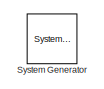
[diagram: root canvas - part 1/3, top center region]
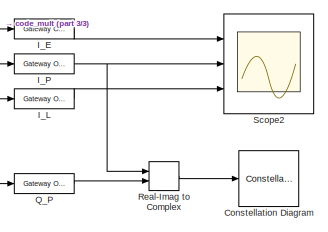
[diagram: root canvas - part 2/3, middle right region]
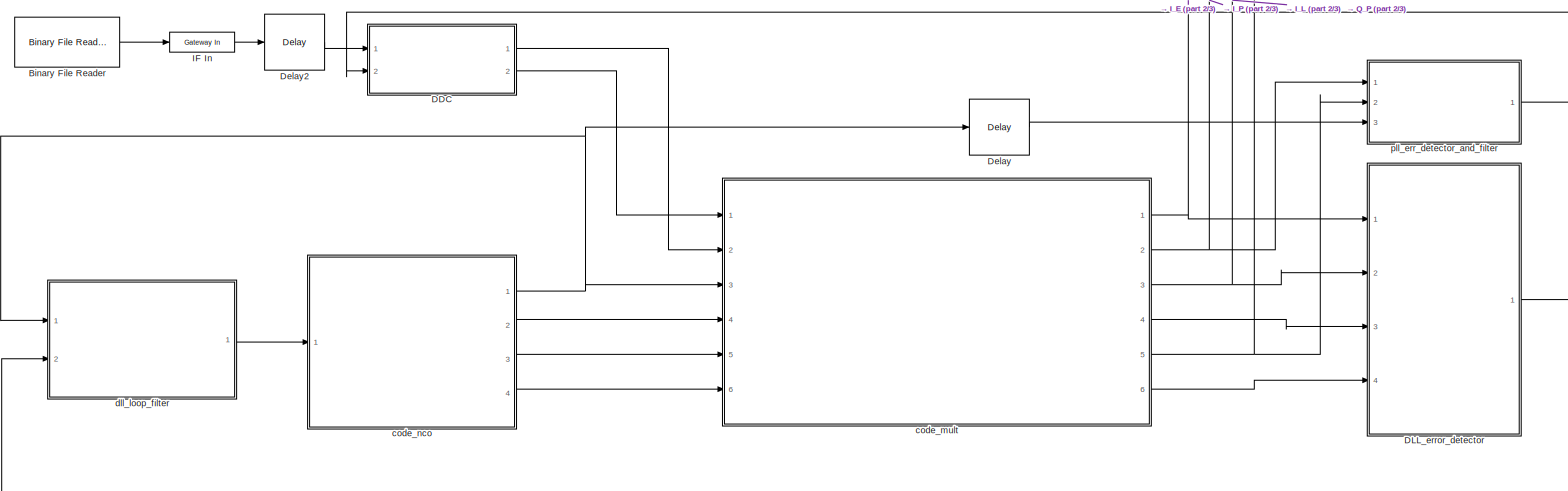
[diagram: root canvas - part 3/3, full width, bottom band]
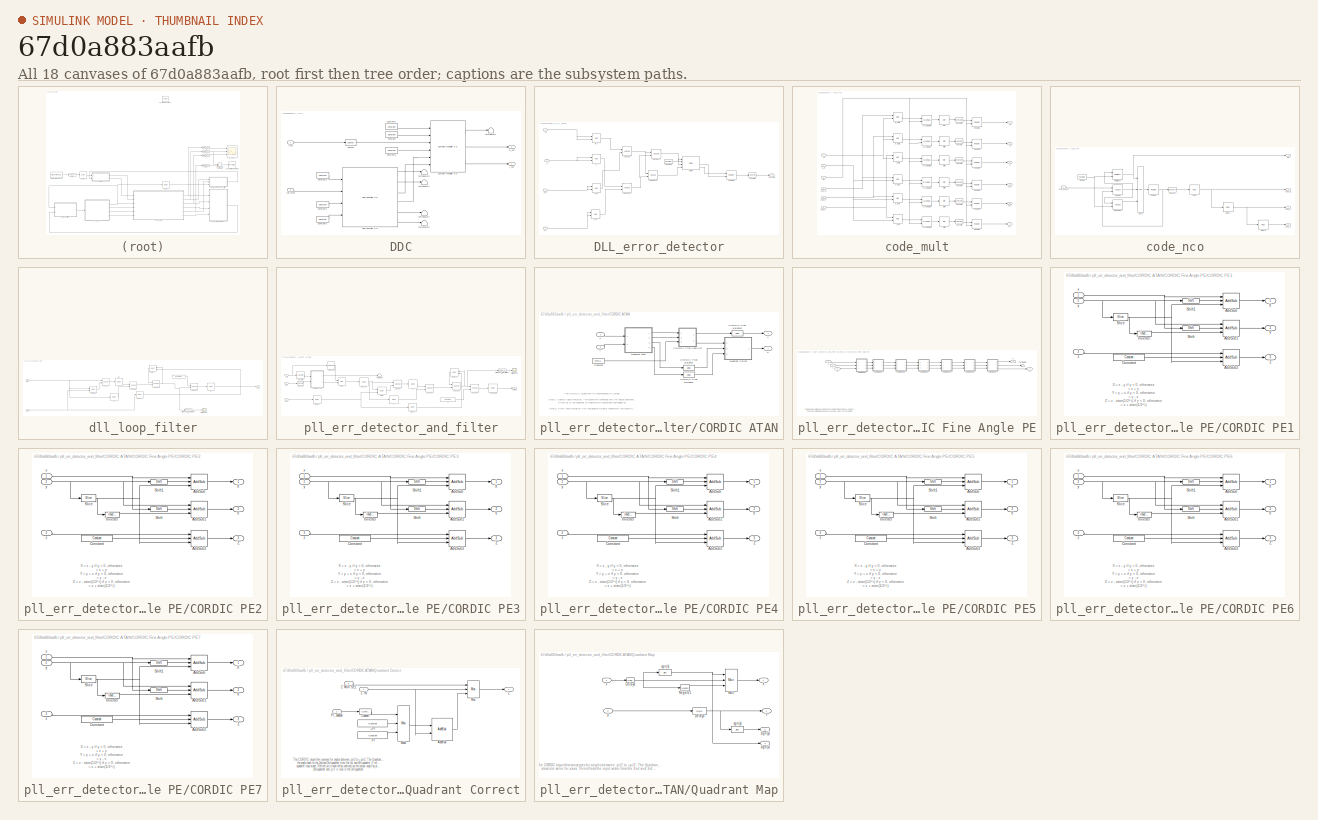
[diagram: thumbnail index - all 18 canvases of the model, root first then tree order]
MODEL slx_67d0a883aafb
KIND model
CONFIG AbsTol = auto
CONFIG EnableMultiTasking = off
CONFIG FixedStep = auto
CONFIG MaxStep = auto
CONFIG MinStep = auto
CONFIG RelTol = 1e-3
CONFIG SampleTimeConstraint = Unconstrained
CONFIG Solver = VariableStepAuto
CONFIG SolverName = VariableStepAuto
CONFIG StartTime = 0.0
CONFIG StopTime = 500*16368/16367600
BLOCK [Reference]  I_P  REF=xbsIndex_r4/Gateway Out
  Ports = [1, 1]
  SourceBlock = xbsIndex_r4/Gateway Out
  SourceType = Xilinx Gateway Out Block
BLOCK [Reference]  System Generator  REF=xbsIndex_r4/ System Generator
  AttributesFormatString = System\nGenerator
  Ports = []
  SourceBlock = xbsIndex_r4/ System Generator
  SourceType = Xilinx System Generator Block
  Tag = genX
  UserDataPersistent = on
BLOCK [Reference] Binary File Reader  REF=dspsrcs4/Binary File Reader
  Ports = [0, 1]
  SourceBlock = dspsrcs4/Binary File Reader
  SourceProductBaseCode = DS
  SourceProductName = DSP System Toolbox
  SourceType = dsp.simulink.BinaryFileReader
BLOCK [ConstellationDiagram] Constellation Diagram
  Ports = [1]
  ScopeSpecificationString = comm.scopes.ConstellationDiagramBlockCfg('CurrentConfiguration', extmgr.ConfigurationSet(extmgr.Configuration('Core','General UI',true),extmgr.Configuration('Core','Source UI',true),extmgr.Configuration('Sources','WiredSimulink',true),extmgr.Configuration('Sources','SimulinkEvent',false),extmgr.Configuration('Sources','Simulink',false),extmgr.Configuration('Sources','SPTool',false),extmgr.Configur...<+2542ch>
BLOCK [SubSystem] DDC
  Ports = [2, 2]
  RequestExecContextInheritance = off
BLOCK [Reference] DDC/Complex Multiplier 6.0   REF=xbsIndex_r4/Complex Multiplier 6.0 
  Ports = [6, 3]
  SourceBlock = xbsIndex_r4/Complex Multiplier 6.0
  SourceType = Xilinx Complex Multiplier 6.0  Block
BLOCK [Reference] DDC/Constant  REF=xbsIndex_r4/Constant
  Ports = [0, 1]
  SourceBlock = xbsIndex_r4/Constant
  SourceType = Xilinx Constant Block Block
BLOCK [Reference] DDC/Constant1  REF=xbsIndex_r4/Constant
  Ports = [0, 1]
  SourceBlock = xbsIndex_r4/Constant
  SourceType = Xilinx Constant Block Block
BLOCK [Reference] DDC/Constant2  REF=xbsIndex_r4/Constant
  Ports = [0, 1]
  SourceBlock = xbsIndex_r4/Constant
  SourceType = Xilinx Constant Block Block
BLOCK [Reference] DDC/Constant3  REF=xbsIndex_r4/Constant
  Ports = [0, 1]
  SourceBlock = xbsIndex_r4/Constant
  SourceType = Xilinx Constant Block Block
BLOCK [Reference] DDC/Constant4  REF=xbsIndex_r4/Constant
  Ports = [0, 1]
  SourceBlock = xbsIndex_r4/Constant
  SourceType = Xilinx Constant Block Block
BLOCK [Reference] DDC/Constant6  REF=xbsIndex_r4/Constant
  Ports = [0, 1]
  SourceBlock = xbsIndex_r4/Constant
  SourceType = Xilinx Constant Block Block
BLOCK [Reference] DDC/Convert  REF=xbsIndex_r4/Convert
  Ports = [1, 1]
  SourceBlock = xbsIndex_r4/Convert
  SourceType = Xilinx Type Converter Block
BLOCK [Reference] DDC/DDS Compiler 6.0   REF=xbsIndex_r4/DDS Compiler 6.0 
  Ports = [4, 6]
  SourceBlock = xbsIndex_r4/DDS Compiler 6.0
  SourceType = Xilinx DDS Compiler 6.0 Block
BLOCK [Inport] DDC/IF_in
  IconDisplay = Port number
BLOCK [Outport] DDC/I_out
  IconDisplay = Port number
  Port = 2
BLOCK [Outport] DDC/Q_out
  IconDisplay = Port number
BLOCK [Terminator] DDC/Terminator1
BLOCK [Terminator] DDC/Terminator2
BLOCK [Terminator] DDC/Terminator3
BLOCK [Terminator] DDC/Terminator4
BLOCK [Terminator] DDC/Terminator5
BLOCK [Inport] DDC/carrFreq
  IconDisplay = Port number
  Port = 2
BLOCK [SubSystem] DLL_error_detector
  Ports = [4, 1]
  RequestExecContextInheritance = off
BLOCK [Reference] DLL_error_detector/AddSub10  REF=xbsIndex_r4/AddSub
  Ports = [2, 1]
  SourceBlock = xbsIndex_r4/AddSub
  SourceType = Xilinx Adder/Subtracter Block
BLOCK [Reference] DLL_error_detector/AddSub11  REF=xbsIndex_r4/AddSub
  Ports = [2, 1]
  SourceBlock = xbsIndex_r4/AddSub
  SourceType = Xilinx Adder/Subtracter Block
BLOCK [Reference] DLL_error_detector/AddSub12  REF=xbsIndex_r4/AddSub
  Ports = [2, 1]
  SourceBlock = xbsIndex_r4/AddSub
  SourceType = Xilinx Adder/Subtracter Block
BLOCK [Reference] DLL_error_detector/AddSub9  REF=xbsIndex_r4/AddSub
  Ports = [2, 1]
  SourceBlock = xbsIndex_r4/AddSub
  SourceType = Xilinx Adder/Subtracter Block
BLOCK [Reference] DLL_error_detector/Constant1  REF=xbsIndex_r4/Constant
  Ports = [0, 1]
  SourceBlock = xbsIndex_r4/Constant
  SourceType = Xilinx Constant Block Block
BLOCK [Reference] DLL_error_detector/Convert9  REF=xbsIndex_r4/Convert
  Ports = [1, 1]
  SourceBlock = xbsIndex_r4/Convert
  SourceType = Xilinx Type Converter Block
BLOCK [Reference] DLL_error_detector/Divide  REF=xbsIndex_r4/Divide
  Ports = [4, 4]
  SourceBlock = xbsIndex_r4/Divide
  SourceType = Xilinx Divider Block
BLOCK [Reference] DLL_error_detector/E_I  REF=xbsIndex_r4/Mult
  Ports = [2, 1]
  SourceBlock = xbsIndex_r4/Mult
  SourceType = Xilinx Multiplier Block
BLOCK [Reference] DLL_error_detector/E_Q  REF=xbsIndex_r4/Mult
  Ports = [2, 1]
  SourceBlock = xbsIndex_r4/Mult
  SourceType = Xilinx Multiplier Block
BLOCK [Inport] DLL_error_detector/I_E
  IconDisplay = Port number
BLOCK [Inport] DLL_error_detector/I_L
  IconDisplay = Port number
  Port = 2
BLOCK [Reference] DLL_error_detector/L_I  REF=xbsIndex_r4/Mult
  Ports = [2, 1]
  SourceBlock = xbsIndex_r4/Mult
  SourceType = Xilinx Multiplier Block
BLOCK [Reference] DLL_error_detector/L_Q  REF=xbsIndex_r4/Mult
  Ports = [2, 1]
  SourceBlock = xbsIndex_r4/Mult
  SourceType = Xilinx Multiplier Block
BLOCK [Inport] DLL_error_detector/Q_E
  IconDisplay = Port number
  Port = 3
BLOCK [Inport] DLL_error_detector/Q_L
  IconDisplay = Port number
  Port = 4
BLOCK [Reference] DLL_error_detector/Register1  REF=xbsIndex_r4/Register
  Ports = [2, 1]
  SourceBlock = xbsIndex_r4/Register
  SourceType = Xilinx Register Block
BLOCK [Outport] DLL_error_detector/code_freq
  IconDisplay = Port number
BLOCK [Reference] Delay  REF=xbsIndex_r4/Delay
  Ports = [1, 1]
  SourceBlock = xbsIndex_r4/Delay
  SourceType = Xilinx Delay Block
BLOCK [Reference] Delay2  REF=xbsIndex_r4/Delay
  Ports = [1, 1]
  SourceBlock = xbsIndex_r4/Delay
  SourceType = Xilinx Delay Block
BLOCK [Reference] IF In  REF=xbsIndex_r4/Gateway In
  Ports = [1, 1]
  SourceBlock = xbsIndex_r4/Gateway In
  SourceType = Xilinx Gateway In Block
BLOCK [Reference] I_E  REF=xbsIndex_r4/Gateway Out
  Ports = [1, 1]
  SourceBlock = xbsIndex_r4/Gateway Out
  SourceType = Xilinx Gateway Out Block
BLOCK [Reference] I_L  REF=xbsIndex_r4/Gateway Out
  Ports = [1, 1]
  SourceBlock = xbsIndex_r4/Gateway Out
  SourceType = Xilinx Gateway Out Block
BLOCK [Reference] Q_P  REF=xbsIndex_r4/Gateway Out
  Ports = [1, 1]
  SourceBlock = xbsIndex_r4/Gateway Out
  SourceType = Xilinx Gateway Out Block
BLOCK [RealImagToComplex] Real-Imag to Complex
  Ports = [2, 1]
BLOCK [Scope] Scope2
  Floating = off
  NumInputPorts = 3
  Ports = [3]
  ScopeSpecificationString = Simulink.scopes.TimeScopeBlockCfg('CurrentConfiguration', extmgr.ConfigurationSet(extmgr.Configuration('Core','General UI',true),extmgr.Configuration('Core','Source UI',true),extmgr.Configuration('Sources','WiredSimulink',true,'DataLoggingVariableName','ScopeData2'),extmgr.Configuration('Visuals','Time Domain',true,'SerializedDisplays',{struct('MinYLimReal','-5303.125','MaxYLimReal','1008.125','YL...<+1437ch>
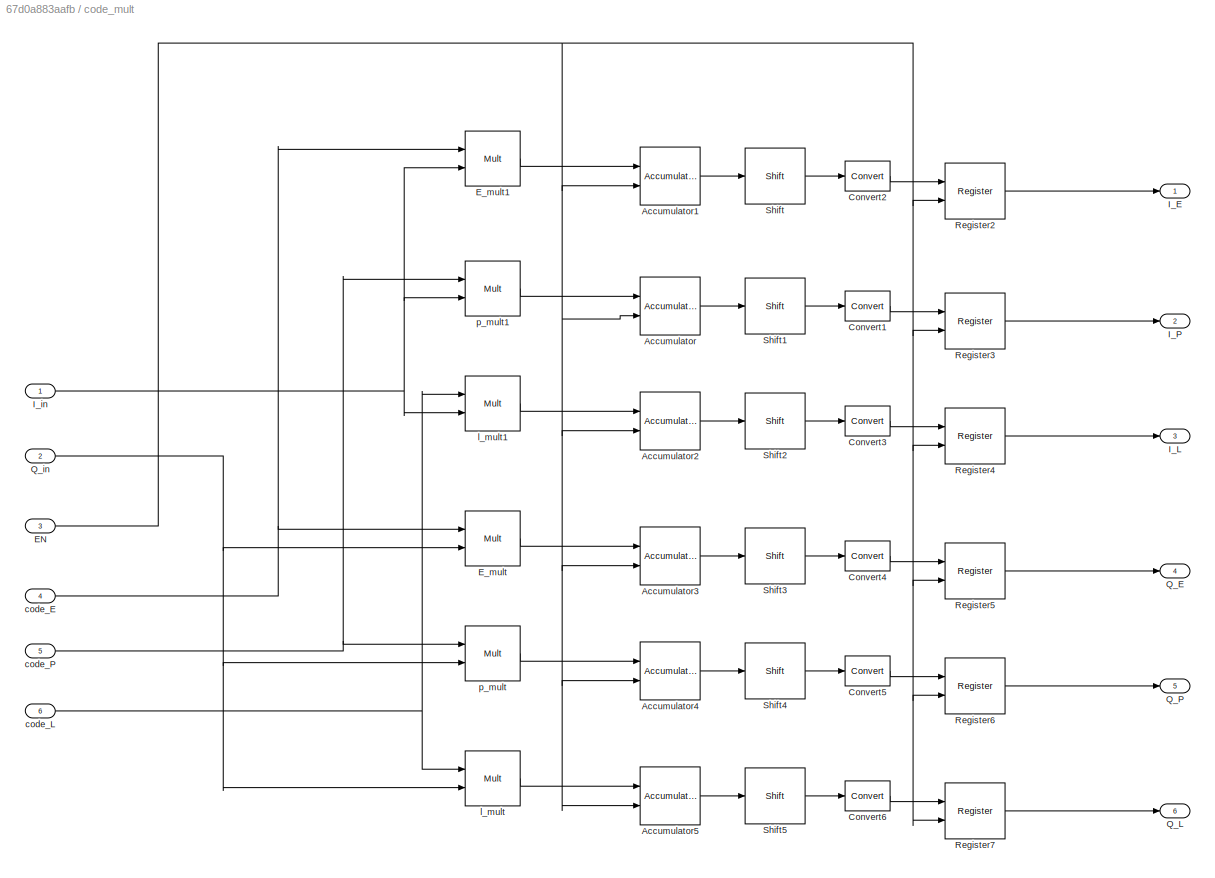
BLOCK [SubSystem] code_mult
  Ports = [6, 6]
  RequestExecContextInheritance = off
BLOCK [Reference] code_mult/Accumulator  REF=xbsIndex_r4/Accumulator
  Ports = [2, 1]
  SourceBlock = xbsIndex_r4/Accumulator
  SourceType = Xilinx Accumulator Block
BLOCK [Reference] code_mult/Accumulator1  REF=xbsIndex_r4/Accumulator
  Ports = [2, 1]
  SourceBlock = xbsIndex_r4/Accumulator
  SourceType = Xilinx Accumulator Block
BLOCK [Reference] code_mult/Accumulator2  REF=xbsIndex_r4/Accumulator
  Ports = [2, 1]
  SourceBlock = xbsIndex_r4/Accumulator
  SourceType = Xilinx Accumulator Block
BLOCK [Reference] code_mult/Accumulator3  REF=xbsIndex_r4/Accumulator
  Ports = [2, 1]
  SourceBlock = xbsIndex_r4/Accumulator
  SourceType = Xilinx Accumulator Block
BLOCK [Reference] code_mult/Accumulator4  REF=xbsIndex_r4/Accumulator
  Ports = [2, 1]
  SourceBlock = xbsIndex_r4/Accumulator
  SourceType = Xilinx Accumulator Block
BLOCK [Reference] code_mult/Accumulator5  REF=xbsIndex_r4/Accumulator
  Ports = [2, 1]
  SourceBlock = xbsIndex_r4/Accumulator
  SourceType = Xilinx Accumulator Block
BLOCK [Reference] code_mult/Convert1  REF=xbsIndex_r4/Convert
  Ports = [1, 1]
  SourceBlock = xbsIndex_r4/Convert
  SourceType = Xilinx Type Converter Block
BLOCK [Reference] code_mult/Convert2  REF=xbsIndex_r4/Convert
  Ports = [1, 1]
  SourceBlock = xbsIndex_r4/Convert
  SourceType = Xilinx Type Converter Block
BLOCK [Reference] code_mult/Convert3  REF=xbsIndex_r4/Convert
  Ports = [1, 1]
  SourceBlock = xbsIndex_r4/Convert
  SourceType = Xilinx Type Converter Block
BLOCK [Reference] code_mult/Convert4  REF=xbsIndex_r4/Convert
  Ports = [1, 1]
  SourceBlock = xbsIndex_r4/Convert
  SourceType = Xilinx Type Converter Block
BLOCK [Reference] code_mult/Convert5  REF=xbsIndex_r4/Convert
  Ports = [1, 1]
  SourceBlock = xbsIndex_r4/Convert
  SourceType = Xilinx Type Converter Block
BLOCK [Reference] code_mult/Convert6  REF=xbsIndex_r4/Convert
  Ports = [1, 1]
  SourceBlock = xbsIndex_r4/Convert
  SourceType = Xilinx Type Converter Block
BLOCK [Inport] code_mult/EN
  IconDisplay = Port number
  Port = 3
BLOCK [Reference] code_mult/E_mult  REF=xbsIndex_r4/Mult
  Ports = [2, 1]
  SourceBlock = xbsIndex_r4/Mult
  SourceType = Xilinx Multiplier Block
BLOCK [Reference] code_mult/E_mult1  REF=xbsIndex_r4/Mult
  Ports = [2, 1]
  SourceBlock = xbsIndex_r4/Mult
  SourceType = Xilinx Multiplier Block
BLOCK [Outport] code_mult/I_E
  IconDisplay = Port number
BLOCK [Outport] code_mult/I_L
  IconDisplay = Port number
  Port = 3
BLOCK [Outport] code_mult/I_P
  IconDisplay = Port number
  Port = 2
BLOCK [Inport] code_mult/I_in
  IconDisplay = Port number
BLOCK [Outport] code_mult/Q_E
  IconDisplay = Port number
  Port = 4
BLOCK [Outport] code_mult/Q_L
  IconDisplay = Port number
  Port = 6
BLOCK [Outport] code_mult/Q_P
  IconDisplay = Port number
  Port = 5
BLOCK [Inport] code_mult/Q_in
  IconDisplay = Port number
  Port = 2
BLOCK [Reference] code_mult/Register2  REF=xbsIndex_r4/Register
  Ports = [2, 1]
  SourceBlock = xbsIndex_r4/Register
  SourceType = Xilinx Register Block
BLOCK [Reference] code_mult/Register3  REF=xbsIndex_r4/Register
  Ports = [2, 1]
  SourceBlock = xbsIndex_r4/Register
  SourceType = Xilinx Register Block
BLOCK [Reference] code_mult/Register4  REF=xbsIndex_r4/Register
  Ports = [2, 1]
  SourceBlock = xbsIndex_r4/Register
  SourceType = Xilinx Register Block
BLOCK [Reference] code_mult/Register5  REF=xbsIndex_r4/Register
  Ports = [2, 1]
  SourceBlock = xbsIndex_r4/Register
  SourceType = Xilinx Register Block
BLOCK [Reference] code_mult/Register6  REF=xbsIndex_r4/Register
  Ports = [2, 1]
  SourceBlock = xbsIndex_r4/Register
  SourceType = Xilinx Register Block
BLOCK [Reference] code_mult/Register7  REF=xbsIndex_r4/Register
  Ports = [2, 1]
  SourceBlock = xbsIndex_r4/Register
  SourceType = Xilinx Register Block
BLOCK [Reference] code_mult/Shift  REF=xbsIndex_r4/Shift
  Commented = through
  Ports = [1, 1]
  SourceBlock = xbsIndex_r4/Shift
  SourceType = Xilinx Binary Shift Operator Block
BLOCK [Reference] code_mult/Shift1  REF=xbsIndex_r4/Shift
  Commented = through
  Ports = [1, 1]
  SourceBlock = xbsIndex_r4/Shift
  SourceType = Xilinx Binary Shift Operator Block
BLOCK [Reference] code_mult/Shift2  REF=xbsIndex_r4/Shift
  Commented = through
  Ports = [1, 1]
  SourceBlock = xbsIndex_r4/Shift
  SourceType = Xilinx Binary Shift Operator Block
BLOCK [Reference] code_mult/Shift3  REF=xbsIndex_r4/Shift
  Commented = through
  Ports = [1, 1]
  SourceBlock = xbsIndex_r4/Shift
  SourceType = Xilinx Binary Shift Operator Block
BLOCK [Reference] code_mult/Shift4  REF=xbsIndex_r4/Shift
  Commented = through
  Ports = [1, 1]
  SourceBlock = xbsIndex_r4/Shift
  SourceType = Xilinx Binary Shift Operator Block
BLOCK [Reference] code_mult/Shift5  REF=xbsIndex_r4/Shift
  Commented = through
  Ports = [1, 1]
  SourceBlock = xbsIndex_r4/Shift
  SourceType = Xilinx Binary Shift Operator Block
BLOCK [Inport] code_mult/code_E
  IconDisplay = Port number
  Port = 4
BLOCK [Inport] code_mult/code_L
  IconDisplay = Port number
  Port = 6
BLOCK [Inport] code_mult/code_P
  IconDisplay = Port number
  Port = 5
BLOCK [Reference] code_mult/l_mult  REF=xbsIndex_r4/Mult
  Ports = [2, 1]
  SourceBlock = xbsIndex_r4/Mult
  SourceType = Xilinx Multiplier Block
BLOCK [Reference] code_mult/l_mult1  REF=xbsIndex_r4/Mult
  Ports = [2, 1]
  SourceBlock = xbsIndex_r4/Mult
  SourceType = Xilinx Multiplier Block
BLOCK [Reference] code_mult/p_mult  REF=xbsIndex_r4/Mult
  Ports = [2, 1]
  SourceBlock = xbsIndex_r4/Mult
  SourceType = Xilinx Multiplier Block
BLOCK [Reference] code_mult/p_mult1  REF=xbsIndex_r4/Mult
  Ports = [2, 1]
  SourceBlock = xbsIndex_r4/Mult
  SourceType = Xilinx Multiplier Block
BLOCK [SubSystem] code_nco
  Ports = [1, 4]
  RequestExecContextInheritance = off
BLOCK [Reference] code_nco/AddSub  REF=xbsIndex_r4/AddSub
  Ports = [2, 1]
  SourceBlock = xbsIndex_r4/AddSub
  SourceType = Xilinx Adder/Subtracter Block
BLOCK [Reference] code_nco/Convert  REF=xbsIndex_r4/Convert
  Ports = [1, 1]
  SourceBlock = xbsIndex_r4/Convert
  SourceType = Xilinx Type Converter Block
BLOCK [Reference] code_nco/Delay4  REF=xbsIndex_r4/Delay
  Ports = [1, 1]
  SourceBlock = xbsIndex_r4/Delay
  SourceType = Xilinx Delay Block
BLOCK [Reference] code_nco/Delay6  REF=xbsIndex_r4/Delay
  Ports = [1, 1]
  SourceBlock = xbsIndex_r4/Delay
  SourceType = Xilinx Delay Block
BLOCK [Outport] code_nco/EN
  IconDisplay = Port number
BLOCK [Reference] code_nco/Modulo  REF=xbsIndex_r4/Constant
  Ports = [0, 1]
  SourceBlock = xbsIndex_r4/Constant
  SourceType = Xilinx Constant Block Block
BLOCK [Reference] code_nco/ModuloGen  REF=xbsIndex_r4/AddSub
  Ports = [2, 1]
  SourceBlock = xbsIndex_r4/AddSub
  SourceType = Xilinx Adder/Subtracter Block
BLOCK [Reference] code_nco/Mux1  REF=xbsIndex_r4/Mux
  Ports = [3, 1]
  SourceBlock = xbsIndex_r4/Mux
  SourceType = Xilinx Bus Multiplexer Block
BLOCK [Reference] code_nco/ROM  REF=xbsIndex_r4/ROM
  Ports = [1, 1]
  SourceBlock = xbsIndex_r4/ROM
  SourceType = Xilinx Single Port Read-Only Memory Block
BLOCK [Reference] code_nco/Register  REF=xbsIndex_r4/Register
  Ports = [1, 1]
  SourceBlock = xbsIndex_r4/Register
  SourceType = Xilinx Register Block
BLOCK [Reference] code_nco/Relational  REF=xbsIndex_r4/Relational
  Ports = [2, 1]
  SourceBlock = xbsIndex_r4/Relational
  SourceType = Xilinx Arithmetic Relational Operator Block
BLOCK [Outport] code_nco/code_E
  IconDisplay = Port number
  Port = 2
BLOCK [Outport] code_nco/code_L
  IconDisplay = Port number
  Port = 4
BLOCK [Outport] code_nco/code_P
  IconDisplay = Port number
  Port = 3
BLOCK [Inport] code_nco/code_freq_in
  IconDisplay = Port number
BLOCK [SubSystem] dll_loop_filter
  Ports = [2, 1]
  RequestExecContextInheritance = off
BLOCK [Reference] dll_loop_filter/AddSub2  REF=xbsIndex_r4/AddSub
  Ports = [2, 1]
  SourceBlock = xbsIndex_r4/AddSub
  SourceType = Xilinx Adder/Subtracter Block
BLOCK [Reference] dll_loop_filter/AddSub5  REF=xbsIndex_r4/AddSub
  Ports = [2, 1]
  SourceBlock = xbsIndex_r4/AddSub
  SourceType = Xilinx Adder/Subtracter Block
BLOCK [Reference] dll_loop_filter/AddSub6  REF=xbsIndex_r4/AddSub
  Ports = [2, 1]
  SourceBlock = xbsIndex_r4/AddSub
  SourceType = Xilinx Adder/Subtracter Block
BLOCK [Reference] dll_loop_filter/AddSub7  REF=xbsIndex_r4/AddSub
  Ports = [2, 1]
  SourceBlock = xbsIndex_r4/AddSub
  SourceType = Xilinx Adder/Subtracter Block
BLOCK [Reference] dll_loop_filter/D1  REF=xbsIndex_r4/CMult
  Ports = [1, 1]
  SourceBlock = xbsIndex_r4/CMult
  SourceType = Xilinx Constant Multiplier Block
BLOCK [Reference] dll_loop_filter/D2  REF=xbsIndex_r4/CMult
  Ports = [1, 1]
  SourceBlock = xbsIndex_r4/CMult
  SourceType = Xilinx Constant Multiplier Block
BLOCK [Reference] dll_loop_filter/Delay5  REF=xbsIndex_r4/Delay
  Ports = [2, 1]
  SourceBlock = xbsIndex_r4/Delay
  SourceType = Xilinx Delay Block
BLOCK [Reference] dll_loop_filter/Delay7  REF=xbsIndex_r4/Delay
  Ports = [2, 1]
  SourceBlock = xbsIndex_r4/Delay
  SourceType = Xilinx Delay Block
BLOCK [Reference] dll_loop_filter/Delay8  REF=xbsIndex_r4/Delay
  Ports = [1, 1]
  SourceBlock = xbsIndex_r4/Delay
  SourceType = Xilinx Delay Block
BLOCK [Reference] dll_loop_filter/F1  REF=xbsIndex_r4/Constant
  Ports = [0, 1]
  SourceBlock = xbsIndex_r4/Constant
  SourceType = Xilinx Constant Block Block
BLOCK [Scope] dll_loop_filter/FilteredDLL
  Floating = off
  NumInputPorts = 1
  Ports = [1]
  ScopeSpecificationString = Simulink.scopes.TimeScopeBlockCfg('CurrentConfiguration', extmgr.ConfigurationSet(extmgr.Configuration('Core','General UI',true),extmgr.Configuration('Core','Source UI',true),extmgr.Configuration('Sources','WiredSimulink',true),extmgr.Configuration('Visuals','Time Domain',true,'SerializedDisplays',{struct('MinYLimReal','-6.82418','MaxYLimReal','2.14703','YLabelReal','','MinYLimMag','0.00000','MaxY...<+1399ch>
BLOCK [Reference] dll_loop_filter/FilteredDLLDiscriminator  REF=xbsIndex_r4/Gateway Out
  Ports = [1, 1]
  SourceBlock = xbsIndex_r4/Gateway Out
  SourceType = Xilinx Gateway Out Block
BLOCK [Reference] dll_loop_filter/I2  REF=xbsIndex_r4/CMult
  Ports = [1, 1]
  SourceBlock = xbsIndex_r4/CMult
  SourceType = Xilinx Constant Multiplier Block
BLOCK [Outport] dll_loop_filter/Out1
  IconDisplay = Port number
BLOCK [Inport] dll_loop_filter/en
  IconDisplay = Port number
BLOCK [Inport] dll_loop_filter/error
  IconDisplay = Port number
  Port = 2
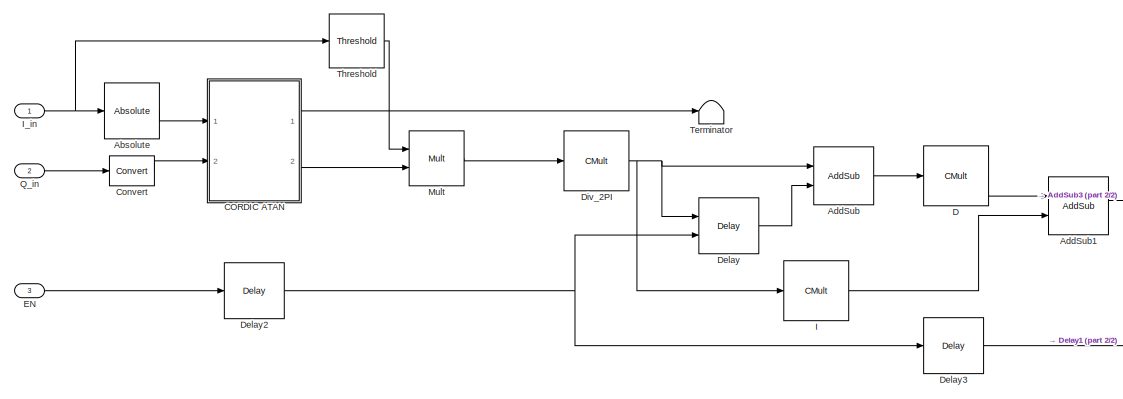
[diagram: pll_err_detector_and_filter - part 1/2, left side, full height]
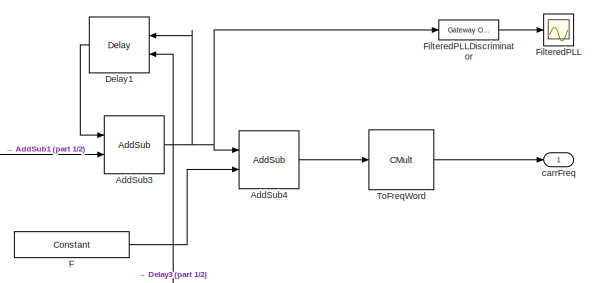
[diagram: pll_err_detector_and_filter - part 2/2, middle right region]
BLOCK [SubSystem] pll_err_detector_and_filter
  Ports = [3, 1]
  RequestExecContextInheritance = off
BLOCK [Reference] pll_err_detector_and_filter/ FilteredPLLDiscriminator  REF=xbsIndex_r4/Gateway Out
  Ports = [1, 1]
  SourceBlock = xbsIndex_r4/Gateway Out
  SourceType = Xilinx Gateway Out Block
BLOCK [Reference] pll_err_detector_and_filter/Absolute  REF=xbsIndex_r4/Absolute
  Ports = [1, 1]
  SourceBlock = xbsIndex_r4/Absolute
  SourceType = Xilinx Absolute Block Block
BLOCK [Reference] pll_err_detector_and_filter/AddSub  REF=xbsIndex_r4/AddSub
  Ports = [2, 1]
  SourceBlock = xbsIndex_r4/AddSub
  SourceType = Xilinx Adder/Subtracter Block
BLOCK [Reference] pll_err_detector_and_filter/AddSub1  REF=xbsIndex_r4/AddSub
  Ports = [2, 1]
  SourceBlock = xbsIndex_r4/AddSub
  SourceType = Xilinx Adder/Subtracter Block
BLOCK [Reference] pll_err_detector_and_filter/AddSub3  REF=xbsIndex_r4/AddSub
  Ports = [2, 1]
  SourceBlock = xbsIndex_r4/AddSub
  SourceType = Xilinx Adder/Subtracter Block
BLOCK [Reference] pll_err_detector_and_filter/AddSub4  REF=xbsIndex_r4/AddSub
  Ports = [2, 1]
  SourceBlock = xbsIndex_r4/AddSub
  SourceType = Xilinx Adder/Subtracter Block
BLOCK [SubSystem] pll_err_detector_and_filter/CORDIC ATAN
  CopyFcn = set_param(gcb, 'MaskSelfModifiable', 'on', 'LinkStatus', 'none');
  Ports = [2, 2]
  RequestExecContextInheritance = off
BLOCK [SubSystem] pll_err_detector_and_filter/CORDIC ATAN/CORDIC Fine Angle PE
  Ports = [3, 2]
  RequestExecContextInheritance = off
BLOCK [SubSystem] pll_err_detector_and_filter/CORDIC ATAN/CORDIC Fine Angle PE/CORDIC PE1
  Ports = [3, 3]
  RequestExecContextInheritance = off
BLOCK [Reference] pll_err_detector_and_filter/CORDIC ATAN/CORDIC Fine Angle PE/CORDIC PE1/AddSub  REF=xbsIndex_r4/AddSub
  Ports = [3, 1]
  SourceBlock = xbsIndex_r4/AddSub
  SourceType = Xilinx Adder/Subtracter Block
BLOCK [Reference] pll_err_detector_and_filter/CORDIC ATAN/CORDIC Fine Angle PE/CORDIC PE1/AddSub1  REF=xbsIndex_r4/AddSub
  Ports = [3, 1]
  SourceBlock = xbsIndex_r4/AddSub
  SourceType = Xilinx Adder/Subtracter Block
BLOCK [Reference] pll_err_detector_and_filter/CORDIC ATAN/CORDIC Fine Angle PE/CORDIC PE1/AddSub2  REF=xbsIndex_r4/AddSub
  Ports = [3, 1]
  SourceBlock = xbsIndex_r4/AddSub
  SourceType = Xilinx Adder/Subtracter Block
BLOCK [Reference] pll_err_detector_and_filter/CORDIC ATAN/CORDIC Fine Angle PE/CORDIC PE1/Constant  REF=xbsIndex_r4/Constant
  Ports = [0, 1]
  SourceBlock = xbsIndex_r4/Constant
  SourceType = Xilinx Constant Block Block
BLOCK [Reference] pll_err_detector_and_filter/CORDIC ATAN/CORDIC Fine Angle PE/CORDIC PE1/Inverter  REF=xbsIndex_r4/Inverter
  Ports = [1, 1]
  SourceBlock = xbsIndex_r4/Inverter
  SourceType = Xilinx Inverter Block
BLOCK [Reference] pll_err_detector_and_filter/CORDIC ATAN/CORDIC Fine Angle PE/CORDIC PE1/Shift  REF=xbsIndex_r4/Shift
  Ports = [1, 1]
  SourceBlock = xbsIndex_r4/Shift
  SourceType = Xilinx Binary Shift Operator Block
BLOCK [Reference] pll_err_detector_and_filter/CORDIC ATAN/CORDIC Fine Angle PE/CORDIC PE1/Shift1  REF=xbsIndex_r4/Shift
  Ports = [1, 1]
  SourceBlock = xbsIndex_r4/Shift
  SourceType = Xilinx Binary Shift Operator Block
BLOCK [Reference] pll_err_detector_and_filter/CORDIC ATAN/CORDIC Fine Angle PE/CORDIC PE1/Slice  REF=xbsIndex_r4/Slice
  Ports = [1, 1]
  SourceBlock = xbsIndex_r4/Slice
  SourceType = Xilinx Bit Slice Extractor Block
BLOCK [Outport] pll_err_detector_and_filter/CORDIC ATAN/CORDIC Fine Angle PE/CORDIC PE1/X
  IconDisplay = Port number
BLOCK [Outport] pll_err_detector_and_filter/CORDIC ATAN/CORDIC Fine Angle PE/CORDIC PE1/Y
  IconDisplay = Port number
  Port = 2
BLOCK [Outport] pll_err_detector_and_filter/CORDIC ATAN/CORDIC Fine Angle PE/CORDIC PE1/Z
  IconDisplay = Port number
  Port = 3
BLOCK [Inport] pll_err_detector_and_filter/CORDIC ATAN/CORDIC Fine Angle PE/CORDIC PE1/x
  IconDisplay = Port number
BLOCK [Inport] pll_err_detector_and_filter/CORDIC ATAN/CORDIC Fine Angle PE/CORDIC PE1/y
  IconDisplay = Port number
  Port = 2
BLOCK [Inport] pll_err_detector_and_filter/CORDIC ATAN/CORDIC Fine Angle PE/CORDIC PE1/z
  IconDisplay = Port number
  Port = 3
BLOCK [SubSystem] pll_err_detector_and_filter/CORDIC ATAN/CORDIC Fine Angle PE/CORDIC PE2
  Ports = [3, 3]
  RequestExecContextInheritance = off
BLOCK [Reference] pll_err_detector_and_filter/CORDIC ATAN/CORDIC Fine Angle PE/CORDIC PE2/AddSub  REF=xbsIndex_r4/AddSub
  Ports = [3, 1]
  SourceBlock = xbsIndex_r4/AddSub
  SourceType = Xilinx Adder/Subtracter Block
BLOCK [Reference] pll_err_detector_and_filter/CORDIC ATAN/CORDIC Fine Angle PE/CORDIC PE2/AddSub1  REF=xbsIndex_r4/AddSub
  Ports = [3, 1]
  SourceBlock = xbsIndex_r4/AddSub
  SourceType = Xilinx Adder/Subtracter Block
BLOCK [Reference] pll_err_detector_and_filter/CORDIC ATAN/CORDIC Fine Angle PE/CORDIC PE2/AddSub2  REF=xbsIndex_r4/AddSub
  Ports = [3, 1]
  SourceBlock = xbsIndex_r4/AddSub
  SourceType = Xilinx Adder/Subtracter Block
BLOCK [Reference] pll_err_detector_and_filter/CORDIC ATAN/CORDIC Fine Angle PE/CORDIC PE2/Constant  REF=xbsIndex_r4/Constant
  Ports = [0, 1]
  SourceBlock = xbsIndex_r4/Constant
  SourceType = Xilinx Constant Block Block
BLOCK [Reference] pll_err_detector_and_filter/CORDIC ATAN/CORDIC Fine Angle PE/CORDIC PE2/Inverter  REF=xbsIndex_r4/Inverter
  Ports = [1, 1]
  SourceBlock = xbsIndex_r4/Inverter
  SourceType = Xilinx Inverter Block
BLOCK [Reference] pll_err_detector_and_filter/CORDIC ATAN/CORDIC Fine Angle PE/CORDIC PE2/Shift  REF=xbsIndex_r4/Shift
  Ports = [1, 1]
  SourceBlock = xbsIndex_r4/Shift
  SourceType = Xilinx Binary Shift Operator Block
BLOCK [Reference] pll_err_detector_and_filter/CORDIC ATAN/CORDIC Fine Angle PE/CORDIC PE2/Shift1  REF=xbsIndex_r4/Shift
  Ports = [1, 1]
  SourceBlock = xbsIndex_r4/Shift
  SourceType = Xilinx Binary Shift Operator Block
BLOCK [Reference] pll_err_detector_and_filter/CORDIC ATAN/CORDIC Fine Angle PE/CORDIC PE2/Slice  REF=xbsIndex_r4/Slice
  Ports = [1, 1]
  SourceBlock = xbsIndex_r4/Slice
  SourceType = Xilinx Bit Slice Extractor Block
BLOCK [Outport] pll_err_detector_and_filter/CORDIC ATAN/CORDIC Fine Angle PE/CORDIC PE2/X
  IconDisplay = Port number
BLOCK [Outport] pll_err_detector_and_filter/CORDIC ATAN/CORDIC Fine Angle PE/CORDIC PE2/Y
  IconDisplay = Port number
  Port = 2
BLOCK [Outport] pll_err_detector_and_filter/CORDIC ATAN/CORDIC Fine Angle PE/CORDIC PE2/Z
  IconDisplay = Port number
  Port = 3
BLOCK [Inport] pll_err_detector_and_filter/CORDIC ATAN/CORDIC Fine Angle PE/CORDIC PE2/x
  IconDisplay = Port number
BLOCK [Inport] pll_err_detector_and_filter/CORDIC ATAN/CORDIC Fine Angle PE/CORDIC PE2/y
  IconDisplay = Port number
  Port = 2
BLOCK [Inport] pll_err_detector_and_filter/CORDIC ATAN/CORDIC Fine Angle PE/CORDIC PE2/z
  IconDisplay = Port number
  Port = 3
BLOCK [SubSystem] pll_err_detector_and_filter/CORDIC ATAN/CORDIC Fine Angle PE/CORDIC PE3
  Ports = [3, 3]
  RequestExecContextInheritance = off
BLOCK [Reference] pll_err_detector_and_filter/CORDIC ATAN/CORDIC Fine Angle PE/CORDIC PE3/AddSub  REF=xbsIndex_r4/AddSub
  Ports = [3, 1]
  SourceBlock = xbsIndex_r4/AddSub
  SourceType = Xilinx Adder/Subtracter Block
BLOCK [Reference] pll_err_detector_and_filter/CORDIC ATAN/CORDIC Fine Angle PE/CORDIC PE3/AddSub1  REF=xbsIndex_r4/AddSub
  Ports = [3, 1]
  SourceBlock = xbsIndex_r4/AddSub
  SourceType = Xilinx Adder/Subtracter Block
BLOCK [Reference] pll_err_detector_and_filter/CORDIC ATAN/CORDIC Fine Angle PE/CORDIC PE3/AddSub2  REF=xbsIndex_r4/AddSub
  Ports = [3, 1]
  SourceBlock = xbsIndex_r4/AddSub
  SourceType = Xilinx Adder/Subtracter Block
BLOCK [Reference] pll_err_detector_and_filter/CORDIC ATAN/CORDIC Fine Angle PE/CORDIC PE3/Constant  REF=xbsIndex_r4/Constant
  Ports = [0, 1]
  SourceBlock = xbsIndex_r4/Constant
  SourceType = Xilinx Constant Block Block
BLOCK [Reference] pll_err_detector_and_filter/CORDIC ATAN/CORDIC Fine Angle PE/CORDIC PE3/Inverter  REF=xbsIndex_r4/Inverter
  Ports = [1, 1]
  SourceBlock = xbsIndex_r4/Inverter
  SourceType = Xilinx Inverter Block
BLOCK [Reference] pll_err_detector_and_filter/CORDIC ATAN/CORDIC Fine Angle PE/CORDIC PE3/Shift  REF=xbsIndex_r4/Shift
  Ports = [1, 1]
  SourceBlock = xbsIndex_r4/Shift
  SourceType = Xilinx Binary Shift Operator Block
BLOCK [Reference] pll_err_detector_and_filter/CORDIC ATAN/CORDIC Fine Angle PE/CORDIC PE3/Shift1  REF=xbsIndex_r4/Shift
  Ports = [1, 1]
  SourceBlock = xbsIndex_r4/Shift
  SourceType = Xilinx Binary Shift Operator Block
BLOCK [Reference] pll_err_detector_and_filter/CORDIC ATAN/CORDIC Fine Angle PE/CORDIC PE3/Slice  REF=xbsIndex_r4/Slice
  Ports = [1, 1]
  SourceBlock = xbsIndex_r4/Slice
  SourceType = Xilinx Bit Slice Extractor Block
BLOCK [Outport] pll_err_detector_and_filter/CORDIC ATAN/CORDIC Fine Angle PE/CORDIC PE3/X
  IconDisplay = Port number
BLOCK [Outport] pll_err_detector_and_filter/CORDIC ATAN/CORDIC Fine Angle PE/CORDIC PE3/Y
  IconDisplay = Port number
  Port = 2
BLOCK [Outport] pll_err_detector_and_filter/CORDIC ATAN/CORDIC Fine Angle PE/CORDIC PE3/Z
  IconDisplay = Port number
  Port = 3
BLOCK [Inport] pll_err_detector_and_filter/CORDIC ATAN/CORDIC Fine Angle PE/CORDIC PE3/x
  IconDisplay = Port number
BLOCK [Inport] pll_err_detector_and_filter/CORDIC ATAN/CORDIC Fine Angle PE/CORDIC PE3/y
  IconDisplay = Port number
  Port = 2
BLOCK [Inport] pll_err_detector_and_filter/CORDIC ATAN/CORDIC Fine Angle PE/CORDIC PE3/z
  IconDisplay = Port number
  Port = 3
BLOCK [SubSystem] pll_err_detector_and_filter/CORDIC ATAN/CORDIC Fine Angle PE/CORDIC PE4
  Ports = [3, 3]
  RequestExecContextInheritance = off
BLOCK [Reference] pll_err_detector_and_filter/CORDIC ATAN/CORDIC Fine Angle PE/CORDIC PE4/AddSub  REF=xbsIndex_r4/AddSub
  Ports = [3, 1]
  SourceBlock = xbsIndex_r4/AddSub
  SourceType = Xilinx Adder/Subtracter Block
BLOCK [Reference] pll_err_detector_and_filter/CORDIC ATAN/CORDIC Fine Angle PE/CORDIC PE4/AddSub1  REF=xbsIndex_r4/AddSub
  Ports = [3, 1]
  SourceBlock = xbsIndex_r4/AddSub
  SourceType = Xilinx Adder/Subtracter Block
BLOCK [Reference] pll_err_detector_and_filter/CORDIC ATAN/CORDIC Fine Angle PE/CORDIC PE4/AddSub2  REF=xbsIndex_r4/AddSub
  Ports = [3, 1]
  SourceBlock = xbsIndex_r4/AddSub
  SourceType = Xilinx Adder/Subtracter Block
BLOCK [Reference] pll_err_detector_and_filter/CORDIC ATAN/CORDIC Fine Angle PE/CORDIC PE4/Constant  REF=xbsIndex_r4/Constant
  Ports = [0, 1]
  SourceBlock = xbsIndex_r4/Constant
  SourceType = Xilinx Constant Block Block
BLOCK [Reference] pll_err_detector_and_filter/CORDIC ATAN/CORDIC Fine Angle PE/CORDIC PE4/Inverter  REF=xbsIndex_r4/Inverter
  Ports = [1, 1]
  SourceBlock = xbsIndex_r4/Inverter
  SourceType = Xilinx Inverter Block
BLOCK [Reference] pll_err_detector_and_filter/CORDIC ATAN/CORDIC Fine Angle PE/CORDIC PE4/Shift  REF=xbsIndex_r4/Shift
  Ports = [1, 1]
  SourceBlock = xbsIndex_r4/Shift
  SourceType = Xilinx Binary Shift Operator Block
BLOCK [Reference] pll_err_detector_and_filter/CORDIC ATAN/CORDIC Fine Angle PE/CORDIC PE4/Shift1  REF=xbsIndex_r4/Shift
  Ports = [1, 1]
  SourceBlock = xbsIndex_r4/Shift
  SourceType = Xilinx Binary Shift Operator Block
BLOCK [Reference] pll_err_detector_and_filter/CORDIC ATAN/CORDIC Fine Angle PE/CORDIC PE4/Slice  REF=xbsIndex_r4/Slice
  Ports = [1, 1]
  SourceBlock = xbsIndex_r4/Slice
  SourceType = Xilinx Bit Slice Extractor Block
BLOCK [Outport] pll_err_detector_and_filter/CORDIC ATAN/CORDIC Fine Angle PE/CORDIC PE4/X
  IconDisplay = Port number
BLOCK [Outport] pll_err_detector_and_filter/CORDIC ATAN/CORDIC Fine Angle PE/CORDIC PE4/Y
  IconDisplay = Port number
  Port = 2
BLOCK [Outport] pll_err_detector_and_filter/CORDIC ATAN/CORDIC Fine Angle PE/CORDIC PE4/Z
  IconDisplay = Port number
  Port = 3
BLOCK [Inport] pll_err_detector_and_filter/CORDIC ATAN/CORDIC Fine Angle PE/CORDIC PE4/x
  IconDisplay = Port number
BLOCK [Inport] pll_err_detector_and_filter/CORDIC ATAN/CORDIC Fine Angle PE/CORDIC PE4/y
  IconDisplay = Port number
  Port = 2
BLOCK [Inport] pll_err_detector_and_filter/CORDIC ATAN/CORDIC Fine Angle PE/CORDIC PE4/z
  IconDisplay = Port number
  Port = 3
BLOCK [SubSystem] pll_err_detector_and_filter/CORDIC ATAN/CORDIC Fine Angle PE/CORDIC PE5
  Ports = [3, 3]
  RequestExecContextInheritance = off
BLOCK [Reference] pll_err_detector_and_filter/CORDIC ATAN/CORDIC Fine Angle PE/CORDIC PE5/AddSub  REF=xbsIndex_r4/AddSub
  Ports = [3, 1]
  SourceBlock = xbsIndex_r4/AddSub
  SourceType = Xilinx Adder/Subtracter Block
BLOCK [Reference] pll_err_detector_and_filter/CORDIC ATAN/CORDIC Fine Angle PE/CORDIC PE5/AddSub1  REF=xbsIndex_r4/AddSub
  Ports = [3, 1]
  SourceBlock = xbsIndex_r4/AddSub
  SourceType = Xilinx Adder/Subtracter Block
BLOCK [Reference] pll_err_detector_and_filter/CORDIC ATAN/CORDIC Fine Angle PE/CORDIC PE5/AddSub2  REF=xbsIndex_r4/AddSub
  Ports = [3, 1]
  SourceBlock = xbsIndex_r4/AddSub
  SourceType = Xilinx Adder/Subtracter Block
BLOCK [Reference] pll_err_detector_and_filter/CORDIC ATAN/CORDIC Fine Angle PE/CORDIC PE5/Constant  REF=xbsIndex_r4/Constant
  Ports = [0, 1]
  SourceBlock = xbsIndex_r4/Constant
  SourceType = Xilinx Constant Block Block
BLOCK [Reference] pll_err_detector_and_filter/CORDIC ATAN/CORDIC Fine Angle PE/CORDIC PE5/Inverter  REF=xbsIndex_r4/Inverter
  Ports = [1, 1]
  SourceBlock = xbsIndex_r4/Inverter
  SourceType = Xilinx Inverter Block
BLOCK [Reference] pll_err_detector_and_filter/CORDIC ATAN/CORDIC Fine Angle PE/CORDIC PE5/Shift  REF=xbsIndex_r4/Shift
  Ports = [1, 1]
  SourceBlock = xbsIndex_r4/Shift
  SourceType = Xilinx Binary Shift Operator Block
BLOCK [Reference] pll_err_detector_and_filter/CORDIC ATAN/CORDIC Fine Angle PE/CORDIC PE5/Shift1  REF=xbsIndex_r4/Shift
  Ports = [1, 1]
  SourceBlock = xbsIndex_r4/Shift
  SourceType = Xilinx Binary Shift Operator Block
BLOCK [Reference] pll_err_detector_and_filter/CORDIC ATAN/CORDIC Fine Angle PE/CORDIC PE5/Slice  REF=xbsIndex_r4/Slice
  Ports = [1, 1]
  SourceBlock = xbsIndex_r4/Slice
  SourceType = Xilinx Bit Slice Extractor Block
BLOCK [Outport] pll_err_detector_and_filter/CORDIC ATAN/CORDIC Fine Angle PE/CORDIC PE5/X
  IconDisplay = Port number
BLOCK [Outport] pll_err_detector_and_filter/CORDIC ATAN/CORDIC Fine Angle PE/CORDIC PE5/Y
  IconDisplay = Port number
  Port = 2
BLOCK [Outport] pll_err_detector_and_filter/CORDIC ATAN/CORDIC Fine Angle PE/CORDIC PE5/Z
  IconDisplay = Port number
  Port = 3
BLOCK [Inport] pll_err_detector_and_filter/CORDIC ATAN/CORDIC Fine Angle PE/CORDIC PE5/x
  IconDisplay = Port number
BLOCK [Inport] pll_err_detector_and_filter/CORDIC ATAN/CORDIC Fine Angle PE/CORDIC PE5/y
  IconDisplay = Port number
  Port = 2
BLOCK [Inport] pll_err_detector_and_filter/CORDIC ATAN/CORDIC Fine Angle PE/CORDIC PE5/z
  IconDisplay = Port number
  Port = 3
BLOCK [SubSystem] pll_err_detector_and_filter/CORDIC ATAN/CORDIC Fine Angle PE/CORDIC PE6
  Ports = [3, 3]
  RequestExecContextInheritance = off
BLOCK [Reference] pll_err_detector_and_filter/CORDIC ATAN/CORDIC Fine Angle PE/CORDIC PE6/AddSub  REF=xbsIndex_r4/AddSub
  Ports = [3, 1]
  SourceBlock = xbsIndex_r4/AddSub
  SourceType = Xilinx Adder/Subtracter Block
BLOCK [Reference] pll_err_detector_and_filter/CORDIC ATAN/CORDIC Fine Angle PE/CORDIC PE6/AddSub1  REF=xbsIndex_r4/AddSub
  Ports = [3, 1]
  SourceBlock = xbsIndex_r4/AddSub
  SourceType = Xilinx Adder/Subtracter Block
BLOCK [Reference] pll_err_detector_and_filter/CORDIC ATAN/CORDIC Fine Angle PE/CORDIC PE6/AddSub2  REF=xbsIndex_r4/AddSub
  Ports = [3, 1]
  SourceBlock = xbsIndex_r4/AddSub
  SourceType = Xilinx Adder/Subtracter Block
BLOCK [Reference] pll_err_detector_and_filter/CORDIC ATAN/CORDIC Fine Angle PE/CORDIC PE6/Constant  REF=xbsIndex_r4/Constant
  Ports = [0, 1]
  SourceBlock = xbsIndex_r4/Constant
  SourceType = Xilinx Constant Block Block
BLOCK [Reference] pll_err_detector_and_filter/CORDIC ATAN/CORDIC Fine Angle PE/CORDIC PE6/Inverter  REF=xbsIndex_r4/Inverter
  Ports = [1, 1]
  SourceBlock = xbsIndex_r4/Inverter
  SourceType = Xilinx Inverter Block
BLOCK [Reference] pll_err_detector_and_filter/CORDIC ATAN/CORDIC Fine Angle PE/CORDIC PE6/Shift  REF=xbsIndex_r4/Shift
  Ports = [1, 1]
  SourceBlock = xbsIndex_r4/Shift
  SourceType = Xilinx Binary Shift Operator Block
BLOCK [Reference] pll_err_detector_and_filter/CORDIC ATAN/CORDIC Fine Angle PE/CORDIC PE6/Shift1  REF=xbsIndex_r4/Shift
  Ports = [1, 1]
  SourceBlock = xbsIndex_r4/Shift
  SourceType = Xilinx Binary Shift Operator Block
BLOCK [Reference] pll_err_detector_and_filter/CORDIC ATAN/CORDIC Fine Angle PE/CORDIC PE6/Slice  REF=xbsIndex_r4/Slice
  Ports = [1, 1]
  SourceBlock = xbsIndex_r4/Slice
  SourceType = Xilinx Bit Slice Extractor Block
BLOCK [Outport] pll_err_detector_and_filter/CORDIC ATAN/CORDIC Fine Angle PE/CORDIC PE6/X
  IconDisplay = Port number
BLOCK [Outport] pll_err_detector_and_filter/CORDIC ATAN/CORDIC Fine Angle PE/CORDIC PE6/Y
  IconDisplay = Port number
  Port = 2
BLOCK [Outport] pll_err_detector_and_filter/CORDIC ATAN/CORDIC Fine Angle PE/CORDIC PE6/Z
  IconDisplay = Port number
  Port = 3
BLOCK [Inport] pll_err_detector_and_filter/CORDIC ATAN/CORDIC Fine Angle PE/CORDIC PE6/x
  IconDisplay = Port number
BLOCK [Inport] pll_err_detector_and_filter/CORDIC ATAN/CORDIC Fine Angle PE/CORDIC PE6/y
  IconDisplay = Port number
  Port = 2
BLOCK [Inport] pll_err_detector_and_filter/CORDIC ATAN/CORDIC Fine Angle PE/CORDIC PE6/z
  IconDisplay = Port number
  Port = 3
BLOCK [SubSystem] pll_err_detector_and_filter/CORDIC ATAN/CORDIC Fine Angle PE/CORDIC PE7
  Ports = [3, 3]
  RequestExecContextInheritance = off
BLOCK [Reference] pll_err_detector_and_filter/CORDIC ATAN/CORDIC Fine Angle PE/CORDIC PE7/AddSub  REF=xbsIndex_r4/AddSub
  Ports = [3, 1]
  SourceBlock = xbsIndex_r4/AddSub
  SourceType = Xilinx Adder/Subtracter Block
BLOCK [Reference] pll_err_detector_and_filter/CORDIC ATAN/CORDIC Fine Angle PE/CORDIC PE7/AddSub1  REF=xbsIndex_r4/AddSub
  Ports = [3, 1]
  SourceBlock = xbsIndex_r4/AddSub
  SourceType = Xilinx Adder/Subtracter Block
BLOCK [Reference] pll_err_detector_and_filter/CORDIC ATAN/CORDIC Fine Angle PE/CORDIC PE7/AddSub2  REF=xbsIndex_r4/AddSub
  Ports = [3, 1]
  SourceBlock = xbsIndex_r4/AddSub
  SourceType = Xilinx Adder/Subtracter Block
BLOCK [Reference] pll_err_detector_and_filter/CORDIC ATAN/CORDIC Fine Angle PE/CORDIC PE7/Constant  REF=xbsIndex_r4/Constant
  Ports = [0, 1]
  SourceBlock = xbsIndex_r4/Constant
  SourceType = Xilinx Constant Block Block
BLOCK [Reference] pll_err_detector_and_filter/CORDIC ATAN/CORDIC Fine Angle PE/CORDIC PE7/Inverter  REF=xbsIndex_r4/Inverter
  Ports = [1, 1]
  SourceBlock = xbsIndex_r4/Inverter
  SourceType = Xilinx Inverter Block
BLOCK [Reference] pll_err_detector_and_filter/CORDIC ATAN/CORDIC Fine Angle PE/CORDIC PE7/Shift  REF=xbsIndex_r4/Shift
  Ports = [1, 1]
  SourceBlock = xbsIndex_r4/Shift
  SourceType = Xilinx Binary Shift Operator Block
BLOCK [Reference] pll_err_detector_and_filter/CORDIC ATAN/CORDIC Fine Angle PE/CORDIC PE7/Shift1  REF=xbsIndex_r4/Shift
  Ports = [1, 1]
  SourceBlock = xbsIndex_r4/Shift
  SourceType = Xilinx Binary Shift Operator Block
BLOCK [Reference] pll_err_detector_and_filter/CORDIC ATAN/CORDIC Fine Angle PE/CORDIC PE7/Slice  REF=xbsIndex_r4/Slice
  Ports = [1, 1]
  SourceBlock = xbsIndex_r4/Slice
  SourceType = Xilinx Bit Slice Extractor Block
BLOCK [Outport] pll_err_detector_and_filter/CORDIC ATAN/CORDIC Fine Angle PE/CORDIC PE7/X
  IconDisplay = Port number
BLOCK [Outport] pll_err_detector_and_filter/CORDIC ATAN/CORDIC Fine Angle PE/CORDIC PE7/Y
  IconDisplay = Port number
  Port = 2
BLOCK [Outport] pll_err_detector_and_filter/CORDIC ATAN/CORDIC Fine Angle PE/CORDIC PE7/Z
  IconDisplay = Port number
  Port = 3
BLOCK [Inport] pll_err_detector_and_filter/CORDIC ATAN/CORDIC Fine Angle PE/CORDIC PE7/x
  IconDisplay = Port number
BLOCK [Inport] pll_err_detector_and_filter/CORDIC ATAN/CORDIC Fine Angle PE/CORDIC PE7/y
  IconDisplay = Port number
  Port = 2
BLOCK [Inport] pll_err_detector_and_filter/CORDIC ATAN/CORDIC Fine Angle PE/CORDIC PE7/z
  IconDisplay = Port number
  Port = 3
BLOCK [Terminator] pll_err_detector_and_filter/CORDIC ATAN/CORDIC Fine Angle PE/Terminator
BLOCK [Outport] pll_err_detector_and_filter/CORDIC ATAN/CORDIC Fine Angle PE/X
  IconDisplay = Port number
BLOCK [Outport] pll_err_detector_and_filter/CORDIC ATAN/CORDIC Fine Angle PE/Z
  IconDisplay = Port number
  Port = 2
BLOCK [Inport] pll_err_detector_and_filter/CORDIC ATAN/CORDIC Fine Angle PE/x
  IconDisplay = Port number
BLOCK [Inport] pll_err_detector_and_filter/CORDIC ATAN/CORDIC Fine Angle PE/y
  IconDisplay = Port number
  Port = 2
BLOCK [Inport] pll_err_detector_and_filter/CORDIC ATAN/CORDIC Fine Angle PE/z
  IconDisplay = Port number
  Port = 3
BLOCK [Reference] pll_err_detector_and_filter/CORDIC ATAN/CORDIC Pipe Balance  REF=xbsIndex_r4/Delay
  Ports = [1, 1]
  SourceBlock = xbsIndex_r4/Delay
  SourceType = Xilinx Delay Block
BLOCK [Reference] pll_err_detector_and_filter/CORDIC ATAN/CORDIC Pipe Balance1  REF=xbsIndex_r4/Delay
  Ports = [1, 1]
  SourceBlock = xbsIndex_r4/Delay
  SourceType = Xilinx Delay Block
BLOCK [Reference] pll_err_detector_and_filter/CORDIC ATAN/CORDIC Pipe Balance2  REF=xbsIndex_r4/Delay
  Ports = [1, 1]
  SourceBlock = xbsIndex_r4/Delay
  SourceType = Xilinx Delay Block
BLOCK [Reference] pll_err_detector_and_filter/CORDIC ATAN/Constant  REF=xbsIndex_r4/Constant
  Ports = [0, 1]
  SourceBlock = xbsIndex_r4/Constant
  SourceType = Xilinx Constant Block Block
BLOCK [SubSystem] pll_err_detector_and_filter/CORDIC ATAN/Quadrant Correct
  Ports = [3, 1]
  RequestExecContextInheritance = off
BLOCK [Reference] pll_err_detector_and_filter/CORDIC ATAN/Quadrant Correct/+PI  REF=xbsIndex_r4/Constant
  Ports = [0, 1]
  SourceBlock = xbsIndex_r4/Constant
  SourceType = Xilinx Constant Block Block
BLOCK [Reference] pll_err_detector_and_filter/CORDIC ATAN/Quadrant Correct/-PI  REF=xbsIndex_r4/Constant
  Ports = [0, 1]
  SourceBlock = xbsIndex_r4/Constant
  SourceType = Xilinx Constant Block Block
BLOCK [Reference] pll_err_detector_and_filter/CORDIC ATAN/Quadrant Correct/AddSub  REF=xbsIndex_r4/AddSub
  Ports = [2, 1]
  SourceBlock = xbsIndex_r4/AddSub
  SourceType = Xilinx Adder/Subtracter Block
BLOCK [Reference] pll_err_detector_and_filter/CORDIC ATAN/Quadrant Correct/Convert  REF=xbsIndex_r4/Convert
  Ports = [1, 1]
  SourceBlock = xbsIndex_r4/Convert
  SourceType = Xilinx Type Converter Block
BLOCK [Reference] pll_err_detector_and_filter/CORDIC ATAN/Quadrant Correct/Mux  REF=xbsIndex_r4/Mux
  Ports = [3, 1]
  SourceBlock = xbsIndex_r4/Mux
  SourceType = Xilinx Bus Multiplexer Block
BLOCK [Reference] pll_err_detector_and_filter/CORDIC ATAN/Quadrant Correct/Mux1  REF=xbsIndex_r4/Mux
  Ports = [3, 1]
  SourceBlock = xbsIndex_r4/Mux
  SourceType = Xilinx Bus Multiplexer Block
BLOCK [Inport] pll_err_detector_and_filter/CORDIC ATAN/Quadrant Correct/PI_ addsub
  IconDisplay = Port number
  Port = 2
BLOCK [Outport] pll_err_detector_and_filter/CORDIC ATAN/Quadrant Correct/Z
  IconDisplay = Port number
BLOCK [Inport] pll_err_detector_and_filter/CORDIC ATAN/Quadrant Correct/Z IN
  IconDisplay = Port number
BLOCK [Inport] pll_err_detector_and_filter/CORDIC ATAN/Quadrant Correct/Z MUX SEL
  IconDisplay = Port number
  Port = 3
BLOCK [SubSystem] pll_err_detector_and_filter/CORDIC ATAN/Quadrant Map
  Ports = [2, 4]
  RequestExecContextInheritance = off
BLOCK [Reference] pll_err_detector_and_filter/CORDIC ATAN/Quadrant Map/Delay3  REF=xbsIndex_r4/Delay
  Ports = [1, 1]
  SourceBlock = xbsIndex_r4/Delay
  SourceType = Xilinx Delay Block
BLOCK [Reference] pll_err_detector_and_filter/CORDIC ATAN/Quadrant Map/Delay4  REF=xbsIndex_r4/Delay
  Ports = [1, 1]
  SourceBlock = xbsIndex_r4/Delay
  SourceType = Xilinx Delay Block
BLOCK [Reference] pll_err_detector_and_filter/CORDIC ATAN/Quadrant Map/Mux  REF=xbsIndex_r4/Mux
  Ports = [3, 1]
  SourceBlock = xbsIndex_r4/Mux
  SourceType = Xilinx Bus Multiplexer Block
BLOCK [Reference] pll_err_detector_and_filter/CORDIC ATAN/Quadrant Map/Negate1  REF=xbsIndex_r4/Negate
  Ports = [1, 1]
  SourceBlock = xbsIndex_r4/Negate
  SourceType = Xilinx Negate Block Block
BLOCK [Outport] pll_err_detector_and_filter/CORDIC ATAN/Quadrant Map/X
  IconDisplay = Port number
BLOCK [Outport] pll_err_detector_and_filter/CORDIC ATAN/Quadrant Map/Y
  IconDisplay = Port number
  Port = 2
BLOCK [Reference] pll_err_detector_and_filter/CORDIC ATAN/Quadrant Map/sgn(x)  REF=xbsIndex_r4/Slice
  Ports = [1, 1]
  SourceBlock = xbsIndex_r4/Slice
  SourceType = Xilinx Bit Slice Extractor Block
BLOCK [Reference] pll_err_detector_and_filter/CORDIC ATAN/Quadrant Map/sgn(y)  REF=xbsIndex_r4/Slice
  Ports = [1, 1]
  SourceBlock = xbsIndex_r4/Slice
  SourceType = Xilinx Bit Slice Extractor Block
BLOCK [Outport] pll_err_detector_and_filter/CORDIC ATAN/Quadrant Map/sign(x)
  IconDisplay = Port number
  Port = 4
BLOCK [Outport] pll_err_detector_and_filter/CORDIC ATAN/Quadrant Map/sign(y)
  IconDisplay = Port number
  Port = 3
BLOCK [Inport] pll_err_detector_and_filter/CORDIC ATAN/Quadrant Map/x
  IconDisplay = Port number
BLOCK [Inport] pll_err_detector_and_filter/CORDIC ATAN/Quadrant Map/y
  IconDisplay = Port number
  Port = 2
BLOCK [Outport] pll_err_detector_and_filter/CORDIC ATAN/X
  IconDisplay = Port number
BLOCK [Outport] pll_err_detector_and_filter/CORDIC ATAN/Z
  IconDisplay = Port number
  Port = 2
BLOCK [Inport] pll_err_detector_and_filter/CORDIC ATAN/x
  IconDisplay = Port number
BLOCK [Inport] pll_err_detector_and_filter/CORDIC ATAN/y
  IconDisplay = Port number
  Port = 2
BLOCK [Reference] pll_err_detector_and_filter/Convert  REF=xbsIndex_r4/Convert
  Ports = [1, 1]
  SourceBlock = xbsIndex_r4/Convert
  SourceType = Xilinx Type Converter Block
BLOCK [Reference] pll_err_detector_and_filter/D  REF=xbsIndex_r4/CMult
  Ports = [1, 1]
  SourceBlock = xbsIndex_r4/CMult
  SourceType = Xilinx Constant Multiplier Block
BLOCK [Reference] pll_err_detector_and_filter/Delay  REF=xbsIndex_r4/Delay
  Ports = [2, 1]
  SourceBlock = xbsIndex_r4/Delay
  SourceType = Xilinx Delay Block
BLOCK [Reference] pll_err_detector_and_filter/Delay1  REF=xbsIndex_r4/Delay
  Ports = [2, 1]
  SourceBlock = xbsIndex_r4/Delay
  SourceType = Xilinx Delay Block
BLOCK [Reference] pll_err_detector_and_filter/Delay2  REF=xbsIndex_r4/Delay
  Ports = [1, 1]
  SourceBlock = xbsIndex_r4/Delay
  SourceType = Xilinx Delay Block
BLOCK [Reference] pll_err_detector_and_filter/Delay3  REF=xbsIndex_r4/Delay
  Ports = [1, 1]
  SourceBlock = xbsIndex_r4/Delay
  SourceType = Xilinx Delay Block
BLOCK [Reference] pll_err_detector_and_filter/Div_2PI  REF=xbsIndex_r4/CMult
  Ports = [1, 1]
  SourceBlock = xbsIndex_r4/CMult
  SourceType = Xilinx Constant Multiplier Block
BLOCK [Inport] pll_err_detector_and_filter/EN
  IconDisplay = Port number
  Port = 3
BLOCK [Reference] pll_err_detector_and_filter/F  REF=xbsIndex_r4/Constant
  Ports = [0, 1]
  SourceBlock = xbsIndex_r4/Constant
  SourceType = Xilinx Constant Block Block
BLOCK [Scope] pll_err_detector_and_filter/FilteredPLL
  Floating = off
  NumInputPorts = 1
  Ports = [1]
  ScopeSpecificationString = Simulink.scopes.TimeScopeBlockCfg('CurrentConfiguration', extmgr.ConfigurationSet(extmgr.Configuration('Core','General UI',true),extmgr.Configuration('Core','Source UI',true),extmgr.Configuration('Sources','WiredSimulink',true,'DataLoggingVariableName','ScopeData4'),extmgr.Configuration('Visuals','Time Domain',true,'SerializedDisplays',{struct('MinYLimReal','-61.1565','MaxYLimReal','90.4491','YLab...<+1439ch>
BLOCK [Reference] pll_err_detector_and_filter/I  REF=xbsIndex_r4/CMult
  Ports = [1, 1]
  SourceBlock = xbsIndex_r4/CMult
  SourceType = Xilinx Constant Multiplier Block
BLOCK [Inport] pll_err_detector_and_filter/I_in
  IconDisplay = Port number
BLOCK [Reference] pll_err_detector_and_filter/Mult  REF=xbsIndex_r4/Mult
  Ports = [2, 1]
  SourceBlock = xbsIndex_r4/Mult
  SourceType = Xilinx Multiplier Block
BLOCK [Inport] pll_err_detector_and_filter/Q_in
  IconDisplay = Port number
  Port = 2
BLOCK [Terminator] pll_err_detector_and_filter/Terminator
BLOCK [Reference] pll_err_detector_and_filter/Threshold  REF=xbsIndex_r4/Threshold
  Ports = [1, 1]
  SourceBlock = xbsIndex_r4/Threshold
  SourceType = Xilinx Threshold Block
BLOCK [Reference] pll_err_detector_and_filter/ToFreqWord  REF=xbsIndex_r4/CMult
  Ports = [1, 1]
  SourceBlock = xbsIndex_r4/CMult
  SourceType = Xilinx Constant Multiplier Block
BLOCK [Outport] pll_err_detector_and_filter/carrFreq
  IconDisplay = Port number
ANNOTATION pll_err_detector_and_filter/CORDIC ATAN: The CORDIC algorithm is implemented in 3 steps. Step 1: Coarse Angle Rotation. The algorithm converges only for angles between -pi/2 and pi/2, so if x < zero, the input vector is reflected to the 1st or 3rd quadrant by making the x-coordinate non-negative. Step 2: Fine Angle Rotation. For rectangular-to-polar conversion, the resulting vector is rotated through progressively smaller angles, such th...<+316ch>
ANNOTATION pll_err_detector_and_filter/CORDIC ATAN/CORDIC Fine Angle PE: The fine angle rotation operation is performed iteratively in stages (0..stages-1). The i-th PE rotates its input vector by an angle +/- atan(1/2^i), driving its input y coordinate towards zero.
ANNOTATION pll_err_detector_and_filter/CORDIC ATAN/CORDIC Fine Angle PE/CORDIC PE1: X = x - y if y < 0, otherwise = x + y Y = y + x if y < 0, otherwise = y - x Z = z - atan(1/2^i) if y < 0, otherwise = z + atan(1/2^i)
ANNOTATION pll_err_detector_and_filter/CORDIC ATAN/CORDIC Fine Angle PE/CORDIC PE2: X = x - y if y < 0, otherwise = x + y Y = y + x if y < 0, otherwise = y - x Z = z - atan(1/2^i) if y < 0, otherwise = z + atan(1/2^i)
ANNOTATION pll_err_detector_and_filter/CORDIC ATAN/CORDIC Fine Angle PE/CORDIC PE3: X = x - y if y < 0, otherwise = x + y Y = y + x if y < 0, otherwise = y - x Z = z - atan(1/2^i) if y < 0, otherwise = z + atan(1/2^i)
ANNOTATION pll_err_detector_and_filter/CORDIC ATAN/CORDIC Fine Angle PE/CORDIC PE4: X = x - y if y < 0, otherwise = x + y Y = y + x if y < 0, otherwise = y - x Z = z - atan(1/2^i) if y < 0, otherwise = z + atan(1/2^i)
ANNOTATION pll_err_detector_and_filter/CORDIC ATAN/CORDIC Fine Angle PE/CORDIC PE5: X = x - y if y < 0, otherwise = x + y Y = y + x if y < 0, otherwise = y - x Z = z - atan(1/2^i) if y < 0, otherwise = z + atan(1/2^i)
ANNOTATION pll_err_detector_and_filter/CORDIC ATAN/CORDIC Fine Angle PE/CORDIC PE6: X = x - y if y < 0, otherwise = x + y Y = y + x if y < 0, otherwise = y - x Z = z - atan(1/2^i) if y < 0, otherwise = z + atan(1/2^i)
ANNOTATION pll_err_detector_and_filter/CORDIC ATAN/CORDIC Fine Angle PE/CORDIC PE7: X = x - y if y < 0, otherwise = x + y Y = y + x if y < 0, otherwise = y - x Z = z - atan(1/2^i) if y < 0, otherwise = z + atan(1/2^i)
ANNOTATION pll_err_detector_and_filter/CORDIC ATAN/Quadrant Correct: The CORDIC algorithm coverges for angles between -pi/2 to +pi/2. The Quadrant Correct subsystem reflects the angle back to the 2nd and 3rd quadrant from the 1st and 4th quadarnt if reflection was applied during the quadarnt map stage. Reflection is applied by subtracting the output angle by pi if the original vector was in the 2nd quadrant and -p if it was in the 3rd quadrant.
ANNOTATION pll_err_detector_and_filter/CORDIC ATAN/Quadrant Map: The CORDIC algorithm converges for angles between -pi/2 to +pi/2. The Quadrant Map subsystem always maps the absolute value for x-axis. This reflects the input vector from the 2nd and 3rd quadrant to the 1st and 4th quadrant, resp.
NET  I_P:1 -> Real-Imag to Complex:1, Scope2:2
LINE Binary File Reader:1 -> IF In:1
LINE DDC/Complex Multiplier 6.0 :1 -> DDC/Terminator1:1
LINE DDC/Complex Multiplier 6.0 :2 -> DDC/Q_out:1
LINE DDC/Complex Multiplier 6.0 :3 -> DDC/I_out:1
LINE DDC/Constant1:1 -> DDC/Complex Multiplier 6.0 :1
LINE DDC/Constant2:1 -> DDC/DDS Compiler 6.0 :1
LINE DDC/Constant3:1 -> DDC/DDS Compiler 6.0 :4
LINE DDC/Constant4:1 -> DDC/DDS Compiler 6.0 :3
LINE DDC/Constant6:1 -> DDC/Complex Multiplier 6.0 :4
LINE DDC/Constant:1 -> DDC/Complex Multiplier 6.0 :2
LINE DDC/Convert:1 -> DDC/Complex Multiplier 6.0 :3
LINE DDC/DDS Compiler 6.0 :1 -> DDC/Terminator3:1
LINE DDC/DDS Compiler 6.0 :2 -> DDC/Terminator2:1
LINE DDC/DDS Compiler 6.0 :3 -> DDC/Complex Multiplier 6.0 :6
LINE DDC/DDS Compiler 6.0 :4 -> DDC/Complex Multiplier 6.0 :5
LINE DDC/DDS Compiler 6.0 :5 -> DDC/Terminator4:1
LINE DDC/DDS Compiler 6.0 :6 -> DDC/Terminator5:1
LINE DDC/IF_in:1 -> DDC/Convert:1
LINE DDC/carrFreq:1 -> DDC/DDS Compiler 6.0 :2
LINE DDC:1 -> code_mult:2
LINE DDC:2 -> code_mult:1
LINE DLL_error_detector/AddSub10:1 -> DLL_error_detector/Divide:4
LINE DLL_error_detector/AddSub11:1 -> DLL_error_detector/Divide:2
NET DLL_error_detector/AddSub12:1 -> DLL_error_detector/AddSub10:2, DLL_error_detector/AddSub11:2
NET DLL_error_detector/AddSub9:1 -> DLL_error_detector/AddSub10:1, DLL_error_detector/AddSub11:1
NET DLL_error_detector/Constant1:1 -> DLL_error_detector/Divide:1, DLL_error_detector/Divide:3
LINE DLL_error_detector/Convert9:1 -> DLL_error_detector/code_freq:1
LINE DLL_error_detector/Divide:3 -> DLL_error_detector/Register1:2
LINE DLL_error_detector/Divide:4 -> DLL_error_detector/Register1:1
LINE DLL_error_detector/E_I:1 -> DLL_error_detector/AddSub9:1
LINE DLL_error_detector/E_Q:1 -> DLL_error_detector/AddSub9:2
NET DLL_error_detector/I_E:1 -> DLL_error_detector/E_I:1, DLL_error_detector/E_I:2
NET DLL_error_detector/I_L:1 -> DLL_error_detector/L_I:1, DLL_error_detector/L_I:2
LINE DLL_error_detector/L_I:1 -> DLL_error_detector/AddSub12:1
LINE DLL_error_detector/L_Q:1 -> DLL_error_detector/AddSub12:2
NET DLL_error_detector/Q_E:1 -> DLL_error_detector/E_Q:1, DLL_error_detector/E_Q:2
NET DLL_error_detector/Q_L:1 -> DLL_error_detector/L_Q:1, DLL_error_detector/L_Q:2
LINE DLL_error_detector/Register1:1 -> DLL_error_detector/Convert9:1
LINE DLL_error_detector:1 -> dll_loop_filter:2
LINE Delay2:1 -> DDC:1
LINE Delay:1 -> pll_err_detector_and_filter:3
LINE IF In:1 -> Delay2:1
LINE I_E:1 -> Scope2:1
LINE I_L:1 -> Scope2:3
LINE Q_P:1 -> Real-Imag to Complex:2
LINE Real-Imag to Complex:1 -> Constellation Diagram:1
LINE code_mult/Accumulator1:1 -> code_mult/Shift:1
LINE code_mult/Accumulator2:1 -> code_mult/Shift2:1
LINE code_mult/Accumulator3:1 -> code_mult/Shift3:1
LINE code_mult/Accumulator4:1 -> code_mult/Shift4:1
LINE code_mult/Accumulator5:1 -> code_mult/Shift5:1
LINE code_mult/Accumulator:1 -> code_mult/Shift1:1
LINE code_mult/Convert1:1 -> code_mult/Register3:1
LINE code_mult/Convert2:1 -> code_mult/Register2:1
LINE code_mult/Convert3:1 -> code_mult/Register4:1
LINE code_mult/Convert4:1 -> code_mult/Register5:1
LINE code_mult/Convert5:1 -> code_mult/Register6:1
LINE code_mult/Convert6:1 -> code_mult/Register7:1
NET code_mult/EN:1 -> code_mult/Accumulator1:2, code_mult/Accumulator2:2, code_mult/Accumulator3:2, code_mult/Accumulator4:2, code_mult/Accumulator5:2, code_mult/Accumulator:2, code_mult/Register2:2, code_mult/Register3:2, code_mult/Register4:2, code_mult/Register5:2, code_mult/Register6:2, code_mult/Register7:2
LINE code_mult/E_mult1:1 -> code_mult/Accumulator1:1
LINE code_mult/E_mult:1 -> code_mult/Accumulator3:1
NET code_mult/I_in:1 -> code_mult/E_mult1:2, code_mult/l_mult1:2, code_mult/p_mult1:2
NET code_mult/Q_in:1 -> code_mult/E_mult:2, code_mult/l_mult:2, code_mult/p_mult:2
LINE code_mult/Register2:1 -> code_mult/I_E:1
LINE code_mult/Register3:1 -> code_mult/I_P:1
LINE code_mult/Register4:1 -> code_mult/I_L:1
LINE code_mult/Register5:1 -> code_mult/Q_E:1
LINE code_mult/Register6:1 -> code_mult/Q_P:1
LINE code_mult/Register7:1 -> code_mult/Q_L:1
LINE code_mult/Shift1:1 -> code_mult/Convert1:1
LINE code_mult/Shift2:1 -> code_mult/Convert3:1
LINE code_mult/Shift3:1 -> code_mult/Convert4:1
LINE code_mult/Shift4:1 -> code_mult/Convert5:1
LINE code_mult/Shift5:1 -> code_mult/Convert6:1
LINE code_mult/Shift:1 -> code_mult/Convert2:1
NET code_mult/code_E:1 -> code_mult/E_mult1:1, code_mult/E_mult:1
NET code_mult/code_L:1 -> code_mult/l_mult1:1, code_mult/l_mult:1
NET code_mult/code_P:1 -> code_mult/p_mult1:1, code_mult/p_mult:1
LINE code_mult/l_mult1:1 -> code_mult/Accumulator2:1
LINE code_mult/l_mult:1 -> code_mult/Accumulator5:1
LINE code_mult/p_mult1:1 -> code_mult/Accumulator:1
LINE code_mult/p_mult:1 -> code_mult/Accumulator4:1
NET code_mult:1 -> DLL_error_detector:1, I_E:1
NET code_mult:2 ->  I_P:1, pll_err_detector_and_filter:1
NET code_mult:3 -> DLL_error_detector:2, I_L:1
LINE code_mult:4 -> DLL_error_detector:3
NET code_mult:5 -> Q_P:1, pll_err_detector_and_filter:2
LINE code_mult:6 -> DLL_error_detector:4
NET code_nco/AddSub:1 -> code_nco/ModuloGen:1, code_nco/Mux1:2, code_nco/Relational:1
LINE code_nco/Convert:1 -> code_nco/ROM:1
NET code_nco/Delay4:1 -> code_nco/Delay6:1, code_nco/code_P:1
LINE code_nco/Delay6:1 -> code_nco/code_L:1
NET code_nco/Modulo:1 -> code_nco/ModuloGen:2, code_nco/Relational:2
LINE code_nco/ModuloGen:1 -> code_nco/Mux1:3
LINE code_nco/Mux1:1 -> code_nco/Register:1
NET code_nco/ROM:1 -> code_nco/Delay4:1, code_nco/code_E:1
NET code_nco/Register:1 -> code_nco/AddSub:2, code_nco/Convert:1
NET code_nco/Relational:1 -> code_nco/EN:1, code_nco/Mux1:1
LINE code_nco/code_freq_in:1 -> code_nco/AddSub:1
NET code_nco:1 -> Delay:1, code_mult:3, dll_loop_filter:1
LINE code_nco:2 -> code_mult:4
LINE code_nco:3 -> code_mult:5
LINE code_nco:4 -> code_mult:6
LINE dll_loop_filter/AddSub2:1 -> dll_loop_filter/D1:1
LINE dll_loop_filter/AddSub5:1 -> dll_loop_filter/AddSub6:2
NET dll_loop_filter/AddSub6:1 -> dll_loop_filter/AddSub7:2, dll_loop_filter/Delay7:1, dll_loop_filter/FilteredDLLDiscriminator:1
LINE dll_loop_filter/AddSub7:1 -> dll_loop_filter/D2:1
LINE dll_loop_filter/D1:1 -> dll_loop_filter/AddSub5:1
LINE dll_loop_filter/D2:1 -> dll_loop_filter/Out1:1
LINE dll_loop_filter/Delay5:1 -> dll_loop_filter/AddSub2:2
LINE dll_loop_filter/Delay7:1 -> dll_loop_filter/AddSub6:1
LINE dll_loop_filter/Delay8:1 -> dll_loop_filter/Delay7:2
LINE dll_loop_filter/F1:1 -> dll_loop_filter/AddSub7:1
LINE dll_loop_filter/FilteredDLLDiscriminator:1 -> dll_loop_filter/FilteredDLL:1
LINE dll_loop_filter/I2:1 -> dll_loop_filter/AddSub5:2
NET dll_loop_filter/en:1 -> dll_loop_filter/Delay5:2, dll_loop_filter/Delay8:1
NET dll_loop_filter/error:1 -> dll_loop_filter/AddSub2:1, dll_loop_filter/Delay5:1, dll_loop_filter/I2:1
LINE dll_loop_filter:1 -> code_nco:1
LINE pll_err_detector_and_filter/ FilteredPLLDiscriminator:1 -> pll_err_detector_and_filter/FilteredPLL:1
LINE pll_err_detector_and_filter/Absolute:1 -> pll_err_detector_and_filter/CORDIC ATAN:1
LINE pll_err_detector_and_filter/AddSub1:1 -> pll_err_detector_and_filter/AddSub3:2
NET pll_err_detector_and_filter/AddSub3:1 -> pll_err_detector_and_filter/ FilteredPLLDiscriminator:1, pll_err_detector_and_filter/AddSub4:1, pll_err_detector_and_filter/Delay1:1
LINE pll_err_detector_and_filter/AddSub4:1 -> pll_err_detector_and_filter/ToFreqWord:1
LINE pll_err_detector_and_filter/AddSub:1 -> pll_err_detector_and_filter/D:1
LINE pll_err_detector_and_filter/CORDIC ATAN:1 -> pll_err_detector_and_filter/Terminator:1
LINE pll_err_detector_and_filter/CORDIC ATAN:2 -> pll_err_detector_and_filter/Mult:2
LINE pll_err_detector_and_filter/Convert:1 -> pll_err_detector_and_filter/CORDIC ATAN:2
LINE pll_err_detector_and_filter/D:1 -> pll_err_detector_and_filter/AddSub1:1
LINE pll_err_detector_and_filter/Delay1:1 -> pll_err_detector_and_filter/AddSub3:1
NET pll_err_detector_and_filter/Delay2:1 -> pll_err_detector_and_filter/Delay3:1, pll_err_detector_and_filter/Delay:2
LINE pll_err_detector_and_filter/Delay3:1 -> pll_err_detector_and_filter/Delay1:2
LINE pll_err_detector_and_filter/Delay:1 -> pll_err_detector_and_filter/AddSub:2
NET pll_err_detector_and_filter/Div_2PI:1 -> pll_err_detector_and_filter/AddSub:1, pll_err_detector_and_filter/Delay:1, pll_err_detector_and_filter/I:1
LINE pll_err_detector_and_filter/EN:1 -> pll_err_detector_and_filter/Delay2:1
LINE pll_err_detector_and_filter/F:1 -> pll_err_detector_and_filter/AddSub4:2
LINE pll_err_detector_and_filter/I:1 -> pll_err_detector_and_filter/AddSub1:2
NET pll_err_detector_and_filter/I_in:1 -> pll_err_detector_and_filter/Absolute:1, pll_err_detector_and_filter/Threshold:1
LINE pll_err_detector_and_filter/Mult:1 -> pll_err_detector_and_filter/Div_2PI:1
LINE pll_err_detector_and_filter/Q_in:1 -> pll_err_detector_and_filter/Convert:1
LINE pll_err_detector_and_filter/Threshold:1 -> pll_err_detector_and_filter/Mult:1
LINE pll_err_detector_and_filter/ToFreqWord:1 -> pll_err_detector_and_filter/carrFreq:1
LINE pll_err_detector_and_filter:1 -> DDC:2
note: NET lines group one-source signal fan-out (src -> all destinations, sorted); 1:1 wires keep LINE
